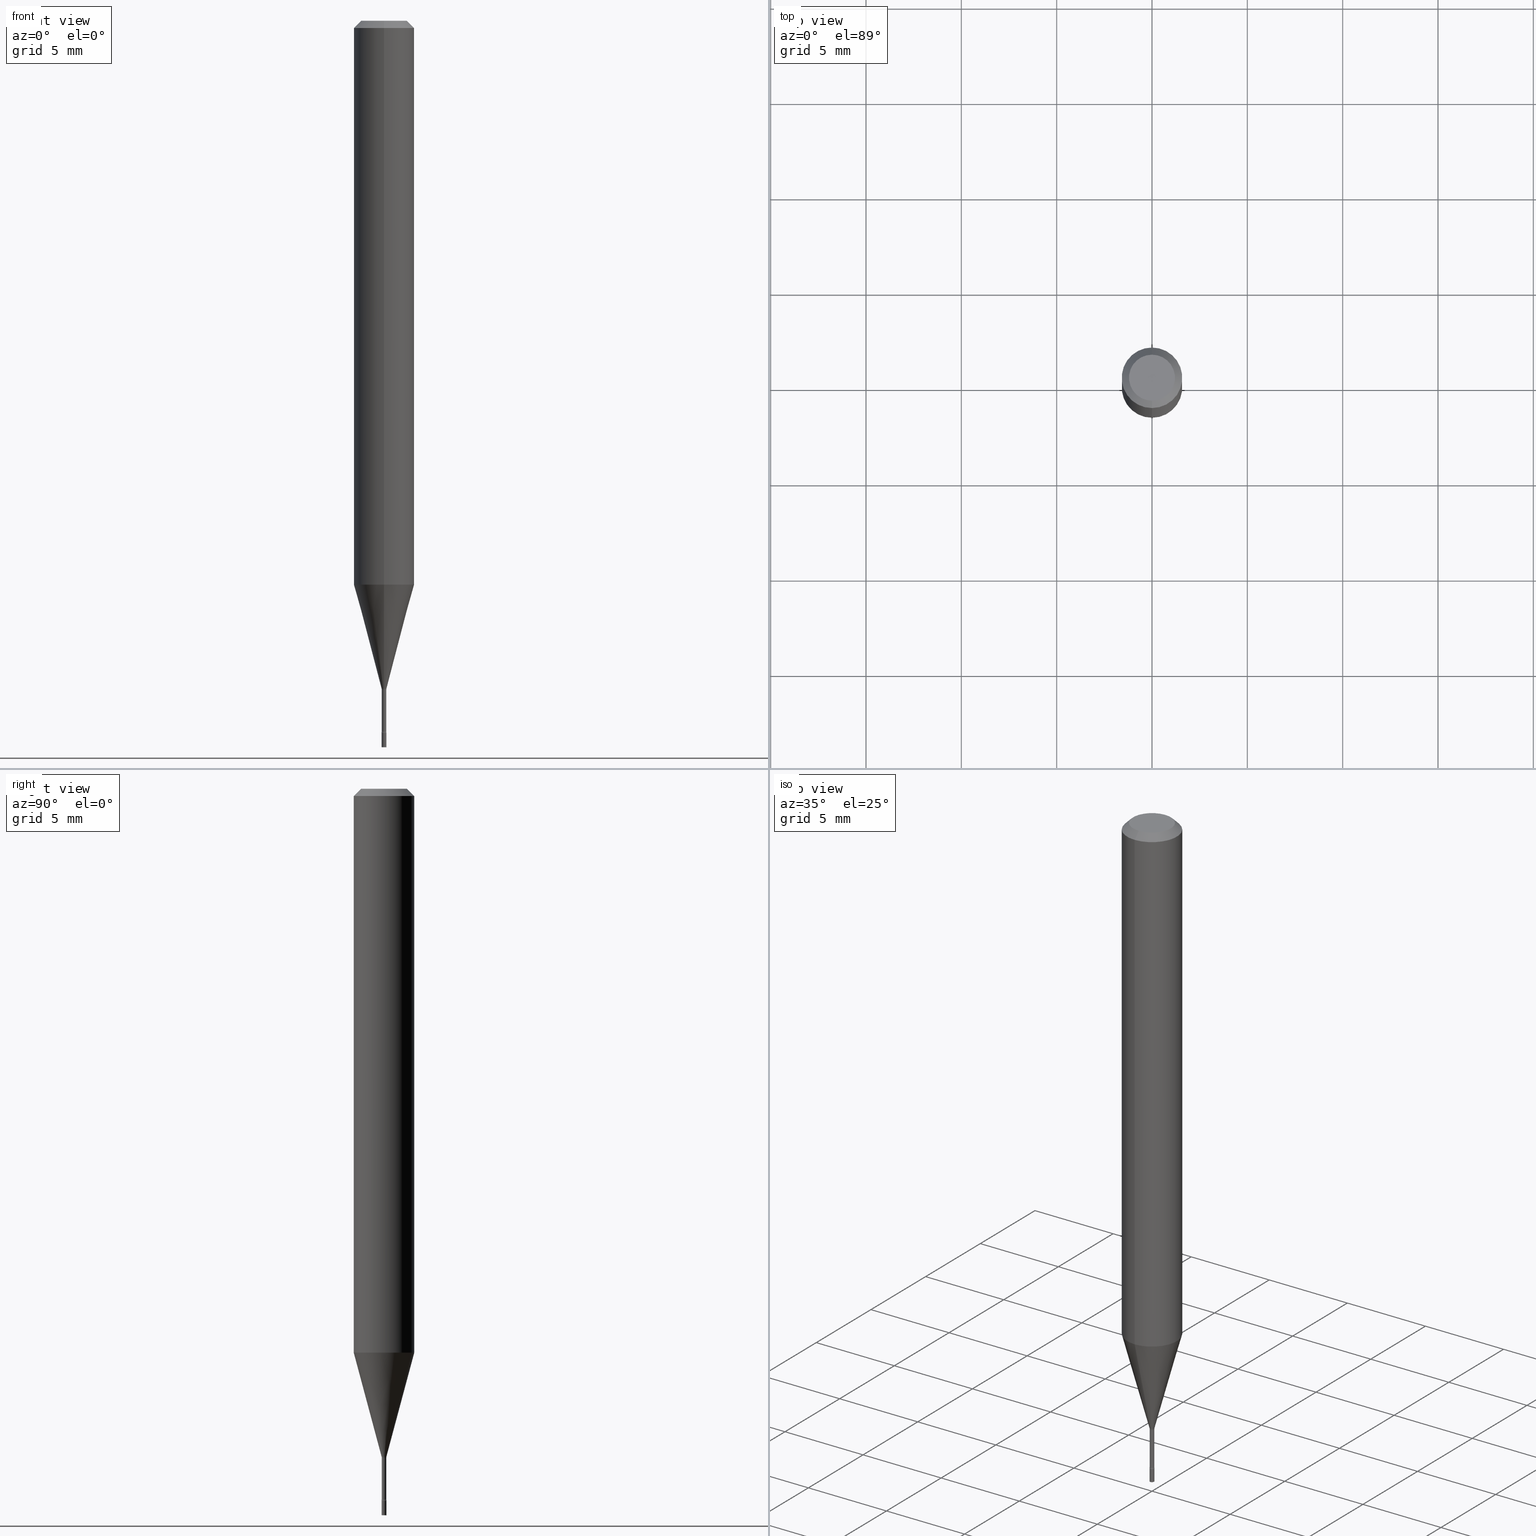
[diagram: canonical four-view strip — front | top / right | iso, engineering-drawing reading convention]
A machine part, canonical four-view strip (front | top / right | iso — engineering-drawing reading convention). The complete STEP part file that produces these views, byte-faithful:
ISO-10303-21;
HEADER;
FILE_DESCRIPTION (( 'STEP AP203' ),
    '1' );
FILE_NAME ('03427.STEP',
    '2024-03-08T21:20:38',
    ( '' ),
    ( '' ),
    'SwSTEP 2.0',
    'SolidWorks 2023',
    '' );
FILE_SCHEMA (( 'CONFIG_CONTROL_DESIGN' ));
ENDSEC;

DATA;
#1 = COORDINATED_UNIVERSAL_TIME_OFFSET ( 5, 0, .BEHIND. ) ;
#2 = DIRECTION ( 'NONE',  ( -6.982962677686265922E-15, -1.000000000000000000, 0.000000000000000000 ) ) ;
#3 = CARTESIAN_POINT ( 'NONE',  ( -0.004999999999999997502, -5.149322651394067240E-15, -1.500000000000000222 ) ) ;
#4 = AXIS2_PLACEMENT_3D ( 'NONE', #443, #43, #2 ) ;
#5 = AXIS2_PLACEMENT_3D ( 'NONE', #410, #217, #416 ) ;
#6 = FACE_OUTER_BOUND ( 'NONE', #184, .T. ) ;
#7 = ORIENTED_EDGE ( 'NONE', *, *, #502, .F. ) ;
#8 = DIRECTION ( 'NONE',  ( -6.982962677686265133E-15, -1.000000000000000000, 3.494231541013484415E-15 ) ) ;
#9 = ORIENTED_EDGE ( 'NONE', *, *, #468, .T. ) ;
#10 = ADVANCED_BREP_SHAPE_REPRESENTATION ( '03427', ( #12, #365, #182 ), #183 ) ;
#11 = LINE ( 'NONE', #91, #14 ) ;
#12 = MANIFOLD_SOLID_BREP ( 'Body-Move/Copy2[1]', #473 ) ;
#13 = ORIENTED_EDGE ( 'NONE', *, *, #186, .T. ) ;
#14 = VECTOR ( 'NONE', #51, 39.37007874015748143 ) ;
#15 = CYLINDRICAL_SURFACE ( 'NONE', #233, 0.004700000000000010593 ) ;
#16 = ORIENTED_EDGE ( 'NONE', *, *, #38, .T. ) ;
#17 = EDGE_CURVE ( 'NONE', #491, #140, #300, .T. ) ;
#18 = DIRECTION ( 'NONE',  ( -1.807323732225325801E-15, -0.2588190451025175753, 0.9659258262890690894 ) ) ;
#19 = ORIENTED_EDGE ( 'NONE', *, *, #502, .T. ) ;
#20 = CARTESIAN_POINT ( 'NONE',  ( 4.440892098500912124E-16, 0.06249999999999995143, -0.01500000000000024751 ) ) ;
#21 = CARTESIAN_POINT ( 'NONE',  ( 1.399769189447734763E-16, 0.01969999999999517276, -1.381974787463811305 ) ) ;
#22 = CIRCLE ( 'NONE', #65, 0.06250000000000000000 ) ;
#23 = VECTOR ( 'NONE', #179, 39.37007874015748143 ) ;
#24 = CARTESIAN_POINT ( 'NONE',  ( 2.844992710246418871E-29, -4.068289977148127894E-15, -1.164287463322519312 ) ) ;
#25 = ORIENTED_EDGE ( 'NONE', *, *, #85, .T. ) ;
#26 = DIRECTION ( 'NONE',  ( 2.438088387897960049E-29, -3.491481338843145188E-15, -1.000000000000000000 ) ) ;
#27 = EDGE_CURVE ( 'NONE', #461, #59, #22, .T. ) ;
#28 = DIRECTION ( 'NONE',  ( -6.982962677686265922E-15, -1.000000000000000000, 3.483106191921935554E-15 ) ) ;
#29 = VECTOR ( 'NONE', #250, 39.37007874015748143 ) ;
#30 = CIRCLE ( 'NONE', #165, 0.04749999999999999362 ) ;
#31 = APPROVAL_DATE_TIME ( #204, #94 ) ;
#32 = CARTESIAN_POINT ( 'NONE',  ( 3.665322525410976875E-31, -5.241347311520237321E-17, -0.01500000000000003067 ) ) ;
#33 = PERSON_AND_ORGANIZATION_ROLE ( 'design_owner' ) ;
#34 = CARTESIAN_POINT ( 'NONE',  ( -0.004999999999999997502, 3.552713678800499154E-17, -2.459467545127451822E-31 ) ) ;
#35 = EDGE_CURVE ( 'NONE', #59, #461, #112, .T. ) ;
#36 = APPROVAL_STATUS ( 'not_yet_approved' ) ;
#37 = DIRECTION ( 'NONE',  ( -6.982962677686266711E-15, -1.000000000000000000, 3.494231541013484415E-15 ) ) ;
#38 = EDGE_CURVE ( 'NONE', #223, #377, #76, .T. ) ;
#39 = AXIS2_PLACEMENT_3D ( 'NONE', #269, #264, #60 ) ;
#40 = DIRECTION ( 'NONE',  ( -2.443548350273979842E-29, 3.494231541013484415E-15, 1.000000000000000000 ) ) ;
#41 = DATE_TIME_ROLE ( 'creation_date' ) ;
#42 = EDGE_CURVE ( 'NONE', #189, #340, #54, .T. ) ;
#43 = DIRECTION ( 'NONE',  ( -2.443548350273979842E-29, 3.494231541013484415E-15, 1.000000000000000000 ) ) ;
#44 = DIRECTION ( 'NONE',  ( -2.443548350273979842E-29, 3.494231541013484415E-15, 1.000000000000000000 ) ) ;
#45 = CARTESIAN_POINT ( 'NONE',  ( 2.405581959609744668E-16, 0.005211112605659107451, -1.378092501787273605 ) ) ;
#46 = AXIS2_PLACEMENT_3D ( 'NONE', #276, #203, #392 ) ;
#47 = AXIS2_PLACEMENT_3D ( 'NONE', #337, #298, #257 ) ;
#48 = ORIENTED_EDGE ( 'NONE', *, *, #252, .T. ) ;
#49 = APPROVAL_PERSON_ORGANIZATION ( #244, #395, #130 ) ;
#50 = CARTESIAN_POINT ( 'NONE',  ( 3.665322525410976875E-31, -5.241347311520237321E-17, -0.01500000000000003067 ) ) ;
#51 = DIRECTION ( 'NONE',  ( -2.443548350273979842E-29, 3.494231541013484415E-15, 1.000000000000000000 ) ) ;
#52 = ORIENTED_EDGE ( 'NONE', *, *, #400, .F. ) ;
#53 = DIRECTION ( 'NONE',  ( -2.443548350273979562E-29, 3.494231541013484415E-15, 1.000000000000000000 ) ) ;
#54 = CIRCLE ( 'NONE', #215, 0.01500000000000000638 ) ;
#55 = ORIENTED_EDGE ( 'NONE', *, *, #275, .F. ) ;
#56 = VECTOR ( 'NONE', #89, 39.37007874015748854 ) ;
#57 = PRODUCT_DEFINITION_FORMATION_WITH_SPECIFIED_SOURCE ( 'ANY', '', #373, .NOT_KNOWN. ) ;
#58 = DIRECTION ( 'NONE',  ( -2.443548350273979842E-29, 3.494231541013484415E-15, 1.000000000000000000 ) ) ;
#59 = VERTEX_POINT ( 'NONE', #160 ) ;
#60 = DIRECTION ( 'NONE',  ( 1.000000000000000000, -6.982962677686336130E-15, 0.000000000000000000 ) ) ;
#61 = ORIENTED_EDGE ( 'NONE', *, *, #186, .F. ) ;
#62 = PERSON ( 'UNSPECIFIED', 'UNSPECIFIED', 'UNSPECIFIED', ('UNSPECIFIED'), ('UNSPECIFIED'), ('UNSPECIFIED') ) ;
#63 = FACE_OUTER_BOUND ( 'NONE', #258, .T. ) ;
#64 = ORIENTED_EDGE ( 'NONE', *, *, #196, .T. ) ;
#65 = AXIS2_PLACEMENT_3D ( 'NONE', #232, #197, #350 ) ;
#66 = TOROIDAL_SURFACE ( 'NONE', #397, 0.01970000000000000223, 0.01500000000000001332 ) ;
#67 = LOCAL_TIME ( 16, 20, 38.00000000000000000, #1 ) ;
#68 = DIRECTION ( 'NONE',  ( -2.443548350273979842E-29, 3.494231541013484415E-15, 1.000000000000000000 ) ) ;
#69 = DIRECTION ( 'NONE',  ( -1.000000000000000000, 6.982962677686265922E-15, -4.883557194083112340E-29 ) ) ;
#70 = ADVANCED_FACE ( 'NONE', ( #313 ), #310, .T. ) ;
#71 =( CONVERSION_BASED_UNIT ( 'INCH', #387 ) LENGTH_UNIT ( ) NAMED_UNIT ( #95 ) );
#72 = EDGE_LOOP ( 'NONE', ( #348, #13, #454, #427 ) ) ;
#73 = CALENDAR_DATE ( 2024, 8, 3 ) ;
#74 = DIRECTION ( 'NONE',  ( -2.443548350273979842E-29, 3.494231541013484415E-15, 1.000000000000000000 ) ) ;
#75 = EDGE_CURVE ( 'NONE', #333, #331, #84, .T. ) ;
#76 = CIRCLE ( 'NONE', #405, 0.01500000000000001159 ) ;
#77 = AXIS2_PLACEMENT_3D ( 'NONE', #385, #154, #110 ) ;
#78 = CC_DESIGN_SECURITY_CLASSIFICATION ( #93, ( #57 ) ) ;
#79 = DIRECTION ( 'NONE',  ( -6.982962677686265133E-15, -1.000000000000000000, 3.494231541013484415E-15 ) ) ;
#80 = FACE_OUTER_BOUND ( 'NONE', #90, .T. ) ;
#81 = EDGE_CURVE ( 'NONE', #180, #106, #439, .T. ) ;
#82 = PERSON_AND_ORGANIZATION_ROLE ( 'creator' ) ;
#83 = CARTESIAN_POINT ( 'NONE',  ( 3.584558826531419241E-29, -5.126324140382401988E-15, -1.467015037688680357 ) ) ;
#84 = CIRCLE ( 'NONE', #129, 0.01500000000000001159 ) ;
#85 = EDGE_CURVE ( 'NONE', #223, #333, #448, .T. ) ;
#86 = PERSON_AND_ORGANIZATION ( #62, #240 ) ;
#87 = CARTESIAN_POINT ( 'NONE',  ( 3.594839145092150820E-29, -5.132477568099424807E-15, -1.470000000000000195 ) ) ;
#88 = FACE_OUTER_BOUND ( 'NONE', #477, .T. ) ;
#89 = DIRECTION ( 'NONE',  ( -4.851104656540963486E-15, -0.7071067811865499042, -0.7071067811865450192 ) ) ;
#90 = EDGE_LOOP ( 'NONE', ( #386, #16, #48, #256 ) ) ;
#91 = CARTESIAN_POINT ( 'NONE',  ( -3.281992458512552434E-17, -0.004700000000000010593, 1.642288824276341282E-17 ) ) ;
#92 = VERTEX_POINT ( 'NONE', #450 ) ;
#93 = SECURITY_CLASSIFICATION ( '', '', #322 ) ;
#94 = APPROVAL ( #277, 'UNSPECIFIED' ) ;
#95 = DIMENSIONAL_EXPONENTS ( 1.000000000000000000, 0.000000000000000000, 0.000000000000000000, 0.000000000000000000, 0.000000000000000000, 0.000000000000000000, 0.000000000000000000 ) ;
#96 = DIRECTION ( 'NONE',  ( -2.443548350273979842E-29, 3.494231541013484415E-15, 1.000000000000000000 ) ) ;
#97 = ORIENTED_EDGE ( 'NONE', *, *, #324, .F. ) ;
#98 = ADVANCED_FACE ( 'NONE', ( #211 ), #326, .T. ) ;
#99 = PLANE ( 'NONE',  #119 ) ;
#100 = ORIENTED_EDGE ( 'NONE', *, *, #275, .T. ) ;
#101 = DIRECTION ( 'NONE',  ( -2.443548350273979842E-29, 3.494231541013484415E-15, 1.000000000000000000 ) ) ;
#102 = APPROVAL ( #352, 'UNSPECIFIED' ) ;
#103 = CONICAL_SURFACE ( 'NONE', #173, 0.005211112605663922176, 0.2617993877991496299 ) ;
#104 = VERTEX_POINT ( 'NONE', #212 ) ;
#105 = AXIS2_PLACEMENT_3D ( 'NONE', #503, #305, #349 ) ;
#106 = VERTEX_POINT ( 'NONE', #132 ) ;
#107 = CC_DESIGN_PERSON_AND_ORGANIZATION_ASSIGNMENT ( #86, #482, ( #93 ) ) ;
#108 = FACE_OUTER_BOUND ( 'NONE', #218, .T. ) ;
#109 = ORIENTED_EDGE ( 'NONE', *, *, #133, .T. ) ;
#110 = DIRECTION ( 'NONE',  ( -6.982962677686265922E-15, -1.000000000000000000, 3.494231541013484415E-15 ) ) ;
#111 = DIRECTION ( 'NONE',  ( -6.982962677686265133E-15, -1.000000000000000000, 0.000000000000000000 ) ) ;
#112 = CIRCLE ( 'NONE', #200, 0.06250000000000000000 ) ;
#113 = AXIS2_PLACEMENT_3D ( 'NONE', #195, #235, #193 ) ;
#114 = CARTESIAN_POINT ( 'NONE',  ( 7.033332737889117221E-46, -1.005754319877456614E-31, -2.878327632477791057E-17 ) ) ;
#115 = ORIENTED_EDGE ( 'NONE', *, *, #354, .F. ) ;
#116 = ORIENTED_EDGE ( 'NONE', *, *, #406, .F. ) ;
#117 = PERSON_AND_ORGANIZATION ( #62, #240 ) ;
#118 = LINE ( 'NONE', #128, #507 ) ;
#119 = AXIS2_PLACEMENT_3D ( 'NONE', #175, #137, #259 ) ;
#120 = DIRECTION ( 'NONE',  ( 7.105427357601000281E-15, 1.000000000000000000, 0.000000000000000000 ) ) ;
#121 = PRODUCT_DEFINITION ( 'UNKNOWN', '', #57, #126 ) ;
#122 = DATE_AND_TIME ( #355, #486 ) ;
#123 = CARTESIAN_POINT ( 'NONE',  ( 3.668203209277704895E-29, -5.237222008264718177E-15, -1.500000000000000222 ) ) ;
#124 = ADVANCED_FACE ( 'NONE', ( #171 ), #157, .F. ) ;
#125 = DATE_AND_TIME ( #73, #351 ) ;
#126 = DESIGN_CONTEXT ( 'detailed design', #127, 'design' ) ;
#127 = APPLICATION_CONTEXT ( 'configuration controlled 3d designs of mechanical parts and assemblies' ) ;
#128 = CARTESIAN_POINT ( 'NONE',  ( 3.339550858072477784E-17, 0.004700000000000010593, -1.642288824276341282E-17 ) ) ;
#129 = AXIS2_PLACEMENT_3D ( 'NONE', #437, #69, #506 ) ;
#130 = APPROVAL_ROLE ( '' ) ;
#131 = CC_DESIGN_APPROVAL ( #94, ( #121 ) ) ;
#132 = CARTESIAN_POINT ( 'NONE',  ( 3.552713678804093402E-17, 0.004999999999994865323, -1.470000000000000195 ) ) ;
#133 = EDGE_CURVE ( 'NONE', #177, #238, #164, .T. ) ;
#134 = LINE ( 'NONE', #451, #56 ) ;
#135 = FACE_OUTER_BOUND ( 'NONE', #150, .T. ) ;
#136 = ORIENTED_EDGE ( 'NONE', *, *, #133, .F. ) ;
#137 = DIRECTION ( 'NONE',  ( 2.443548350273979562E-29, -3.494231541013484415E-15, -1.000000000000000000 ) ) ;
#138 = ADVANCED_FACE ( 'NONE', ( #323 ), #367, .T. ) ;
#139 = VECTOR ( 'NONE', #312, 39.37007874015748143 ) ;
#140 = VERTEX_POINT ( 'NONE', #245 ) ;
#141 = CARTESIAN_POINT ( 'NONE',  ( -3.638900483453792750E-17, -0.005211112605668736901, -1.378092501787273605 ) ) ;
#142 = EDGE_CURVE ( 'NONE', #180, #377, #118, .T. ) ;
#143 = CYLINDRICAL_SURFACE ( 'NONE', #47, 0.004999999999999997502 ) ;
#144 = ORIENTED_EDGE ( 'NONE', *, *, #155, .T. ) ;
#145 = DIRECTION ( 'NONE',  ( -2.443548350273979842E-29, 3.494231541013484415E-15, 1.000000000000000000 ) ) ;
#146 = CC_DESIGN_PERSON_AND_ORGANIZATION_ASSIGNMENT ( #237, #360, ( #57 ) ) ;
#147 = EDGE_LOOP ( 'NONE', ( #463, #466, #411, #501 ) ) ;
#148 = AXIS2_PLACEMENT_3D ( 'NONE', #315, #442, #37 ) ;
#149 = CARTESIAN_POINT ( 'NONE',  ( 4.440892098500909166E-16, 0.06249999999999592687, -1.164287463322519756 ) ) ;
#150 = EDGE_LOOP ( 'NONE', ( #394, #432 ) ) ;
#151 = DIRECTION ( 'NONE',  ( -2.443548350273979842E-29, 3.494231541013484415E-15, 1.000000000000000000 ) ) ;
#152 = EDGE_CURVE ( 'NONE', #344, #104, #485, .T. ) ;
#153 = ORIENTED_EDGE ( 'NONE', *, *, #178, .T. ) ;
#154 = DIRECTION ( 'NONE',  ( -2.443548350273979842E-29, 3.494231541013484415E-15, 1.000000000000000000 ) ) ;
#155 = EDGE_CURVE ( 'NONE', #238, #344, #399, .T. ) ;
#156 = ORIENTED_EDGE ( 'NONE', *, *, #214, .T. ) ;
#157 = TOROIDAL_SURFACE ( 'NONE', #341, 0.01970000000000001958, 0.01500000000000000638 ) ;
#158 = LOCAL_TIME ( 16, 20, 38.00000000000000000, #444 ) ;
#159 =( NAMED_UNIT ( * ) SI_UNIT ( $, .STERADIAN. ) SOLID_ANGLE_UNIT ( ) );
#160 = CARTESIAN_POINT ( 'NONE',  ( -4.364351673553632704E-16, -0.06250000000000409395, -1.164287463322519089 ) ) ;
#161 = DIRECTION ( 'NONE',  ( -6.982962677686266711E-15, -1.000000000000000000, 0.000000000000000000 ) ) ;
#162 = CALENDAR_DATE ( 2024, 8, 3 ) ;
#163 = DIRECTION ( 'NONE',  ( 6.982962677686265922E-15, 1.000000000000000000, -3.483106191921935554E-15 ) ) ;
#164 = CIRCLE ( 'NONE', #293, 0.004999999999999997502 ) ;
#165 = AXIS2_PLACEMENT_3D ( 'NONE', #481, #282, #370 ) ;
#166 = MECHANICAL_CONTEXT ( 'NONE', #420, 'mechanical' ) ;
#167 = DIRECTION ( 'NONE',  ( -2.438088387897960049E-29, 3.491481338843145188E-15, 1.000000000000000000 ) ) ;
#168 = DIRECTION ( 'NONE',  ( 0.000000000000000000, 0.000000000000000000, 1.000000000000000000 ) ) ;
#169 = DIRECTION ( 'NONE',  ( 1.000000000000000000, -6.982962677686336130E-15, 0.000000000000000000 ) ) ;
#170 = CARTESIAN_POINT ( 'NONE',  ( 0.000000000000000000, 0.000000000000000000, 0.000000000000000000 ) ) ;
#171 = FACE_OUTER_BOUND ( 'NONE', #221, .T. ) ;
#172 = ADVANCED_FACE ( 'NONE', ( #88 ), #103, .T. ) ;
#173 = AXIS2_PLACEMENT_3D ( 'NONE', #480, #249, #408 ) ;
#174 = CONICAL_SURFACE ( 'NONE', #113, 0.005211112605663922176, 0.2617993877991496299 ) ;
#175 = CARTESIAN_POINT ( 'NONE',  ( 3.316907271900976096E-16, 0.04749999999999999362, -1.803676363605294628E-16 ) ) ;
#176 = LINE ( 'NONE', #332, #271 ) ;
#177 = VERTEX_POINT ( 'NONE', #205 ) ;
#178 = EDGE_CURVE ( 'NONE', #461, #491, #404, .T. ) ;
#179 = DIRECTION ( 'NONE',  ( 1.839019923739595977E-15, 0.2588190451025243477, 0.9659258262890673130 ) ) ;
#180 = VERTEX_POINT ( 'NONE', #281 ) ;
#181 = CARTESIAN_POINT ( 'NONE',  ( -3.491481338839543545E-17, -0.005000000000005139222, -1.470000000000000195 ) ) ;
#182 = AXIS2_PLACEMENT_3D ( 'NONE', #170, #168, #515 ) ;
#183 =( GEOMETRIC_REPRESENTATION_CONTEXT ( 3 ) GLOBAL_UNCERTAINTY_ASSIGNED_CONTEXT ( ( #266 ) ) GLOBAL_UNIT_ASSIGNED_CONTEXT ( ( #71, #393, #159 ) ) REPRESENTATION_CONTEXT ( 'NONE', 'WORKASPACE' ) );
#184 = EDGE_LOOP ( 'NONE', ( #19, #156 ) ) ;
#185 = DIRECTION ( 'NONE',  ( 4.937700262164547253E-15, 0.7071067811865450192, -0.7071067811865499042 ) ) ;
#186 = EDGE_CURVE ( 'NONE', #180, #189, #464, .T. ) ;
#187 = ORIENTED_EDGE ( 'NONE', *, *, #35, .F. ) ;
#188 = DIRECTION ( 'NONE',  ( -6.982962677686265922E-15, -1.000000000000000000, 3.494231541013484021E-15 ) ) ;
#189 = VERTEX_POINT ( 'NONE', #409 ) ;
#190 =( LENGTH_UNIT ( ) NAMED_UNIT ( * ) SI_UNIT ( $, .METRE. ) );
#191 = ORIENTED_EDGE ( 'NONE', *, *, #152, .F. ) ;
#192 = CIRCLE ( 'NONE', #246, 0.004700000000000007123 ) ;
#193 = DIRECTION ( 'NONE',  ( -6.982962677686266711E-15, -1.000000000000000000, 0.000000000000000000 ) ) ;
#194 = DIRECTION ( 'NONE',  ( 1.000000000000000000, -7.105427357601001070E-15, 4.926349188804931213E-29 ) ) ;
#195 = CARTESIAN_POINT ( 'NONE',  ( 3.367435659267233569E-29, -4.815374286179273696E-15, -1.378092501787273605 ) ) ;
#196 = EDGE_CURVE ( 'NONE', #333, #223, #508, .T. ) ;
#197 = DIRECTION ( 'NONE',  ( -2.443548350273979842E-29, 3.494231541013484415E-15, 1.000000000000000000 ) ) ;
#198 = DIRECTION ( 'NONE',  ( -2.443548350273979842E-29, 3.494231541013484415E-15, 1.000000000000000000 ) ) ;
#199 = ADVANCED_FACE ( 'NONE', ( #80 ), #285, .F. ) ;
#200 = AXIS2_PLACEMENT_3D ( 'NONE', #24, #198, #398 ) ;
#201 = AXIS2_PLACEMENT_3D ( 'NONE', #50, #490, #251 ) ;
#202 = SHAPE_DEFINITION_REPRESENTATION ( #243, #10 ) ;
#203 = DIRECTION ( 'NONE',  ( 2.443548350273979842E-29, -3.494231541013484415E-15, -1.000000000000000000 ) ) ;
#204 = DATE_AND_TIME ( #162, #158 ) ;
#205 = CARTESIAN_POINT ( 'NONE',  ( 0.004999999999999997502, -5.272136821653149826E-15, -1.500000000000000222 ) ) ;
#206 = PERSON_AND_ORGANIZATION ( #62, #240 ) ;
#207 = DIRECTION ( 'NONE',  ( 1.000000000000000000, -6.982962677686336130E-15, 0.000000000000000000 ) ) ;
#208 = CIRCLE ( 'NONE', #302, 0.004999999999999997502 ) ;
#209 = ADVANCED_FACE ( 'NONE', ( #401 ), #358, .T. ) ;
#210 = APPLICATION_PROTOCOL_DEFINITION ( 'international standard', 'config_control_design', 1994, #127 ) ;
#211 = FACE_OUTER_BOUND ( 'NONE', #425, .T. ) ;
#212 = CARTESIAN_POINT ( 'NONE',  ( 0.004999999999999997502, -5.167392381487856456E-15, -1.470000000000000195 ) ) ;
#213 = CARTESIAN_POINT ( 'NONE',  ( 3.367435659267233569E-29, -4.815374286179273696E-15, -1.378092501787273605 ) ) ;
#214 = EDGE_CURVE ( 'NONE', #92, #308, #30, .T. ) ;
#215 = AXIS2_PLACEMENT_3D ( 'NONE', #504, #510, #111 ) ;
#216 = CIRCLE ( 'NONE', #105, 0.005000000000000001839 ) ;
#217 = DIRECTION ( 'NONE',  ( -2.443548350273979842E-29, 3.494231541013484415E-15, 1.000000000000000000 ) ) ;
#218 = EDGE_LOOP ( 'NONE', ( #234, #228, #389, #306 ) ) ;
#219 = CC_DESIGN_PERSON_AND_ORGANIZATION_ASSIGNMENT ( #438, #33, ( #373 ) ) ;
#220 = DIRECTION ( 'NONE',  ( -2.443548350273979842E-29, 3.494231541013484415E-15, 1.000000000000000000 ) ) ;
#221 = EDGE_LOOP ( 'NONE', ( #498, #417, #489, #435 ) ) ;
#222 = CARTESIAN_POINT ( 'NONE',  ( 3.584722175171294626E-29, -5.126090215832872637E-15, -1.467015037688680357 ) ) ;
#223 = VERTEX_POINT ( 'NONE', #45 ) ;
#224 = AXIS2_PLACEMENT_3D ( 'NONE', #447, #241, #318 ) ;
#225 = CARTESIAN_POINT ( 'NONE',  ( 3.584558826531419241E-29, -5.126324140382401988E-15, -1.467015037688680357 ) ) ;
#226 = AXIS2_PLACEMENT_3D ( 'NONE', #222, #96, #288 ) ;
#227 = ORIENTED_EDGE ( 'NONE', *, *, #402, .T. ) ;
#228 = ORIENTED_EDGE ( 'NONE', *, *, #196, .F. ) ;
#229 = CARTESIAN_POINT ( 'NONE',  ( 0.000000000000000000, 0.000000000000000000, 0.000000000000000000 ) ) ;
#230 = ORIENTED_EDGE ( 'NONE', *, *, #27, .T. ) ;
#231 = DIRECTION ( 'NONE',  ( -6.982962677686266711E-15, -1.000000000000000000, 3.494231541013484415E-15 ) ) ;
#232 = CARTESIAN_POINT ( 'NONE',  ( 2.844992710246418871E-29, -4.068289977148127894E-15, -1.164287463322519312 ) ) ;
#233 = AXIS2_PLACEMENT_3D ( 'NONE', #495, #58, #366 ) ;
#234 = ORIENTED_EDGE ( 'NONE', *, *, #38, .F. ) ;
#235 = DIRECTION ( 'NONE',  ( -2.443548350273979842E-29, 3.494231541013484415E-15, 1.000000000000000000 ) ) ;
#236 = ORIENTED_EDGE ( 'NONE', *, *, #519, .T. ) ;
#237 = PERSON_AND_ORGANIZATION ( #62, #240 ) ;
#238 = VERTEX_POINT ( 'NONE', #3 ) ;
#239 = VECTOR ( 'NONE', #284, 39.37007874015748143 ) ;
#240 = ORGANIZATION ( 'UNSPECIFIED', 'UNSPECIFIED', '' ) ;
#241 = DIRECTION ( 'NONE',  ( -2.443548350273979842E-29, 3.494231541013484415E-15, 1.000000000000000000 ) ) ;
#242 = PERSON_AND_ORGANIZATION_ROLE ( 'design_supplier' ) ;
#243 = PRODUCT_DEFINITION_SHAPE ( 'NONE', 'NONE',  #121 ) ;
#244 = PERSON_AND_ORGANIZATION ( #62, #240 ) ;
#245 = CARTESIAN_POINT ( 'NONE',  ( -4.364351673553912750E-16, -0.06250000000000005551, -0.01499999999999981209 ) ) ;
#246 = AXIS2_PLACEMENT_3D ( 'NONE', #376, #101, #460 ) ;
#247 = EDGE_CURVE ( 'NONE', #189, #331, #11, .T. ) ;
#248 = APPROVAL_DATE_TIME ( #446, #102 ) ;
#249 = DIRECTION ( 'NONE',  ( -2.443548350273979842E-29, 3.494231541013484415E-15, 1.000000000000000000 ) ) ;
#250 = DIRECTION ( 'NONE',  ( -2.443548350273979842E-29, 3.494231541013484415E-15, 1.000000000000000000 ) ) ;
#251 = DIRECTION ( 'NONE',  ( -6.982962677686265922E-15, -1.000000000000000000, 3.483106191921935554E-15 ) ) ;
#252 = EDGE_CURVE ( 'NONE', #377, #331, #343, .T. ) ;
#253 = EDGE_LOOP ( 'NONE', ( #61, #374, #9, #295 ) ) ;
#254 = VECTOR ( 'NONE', #18, 39.37007874015748854 ) ;
#255 = CARTESIAN_POINT ( 'NONE',  ( -3.281992458509173891E-17, -0.004700000000004836594, -1.381974787463811305 ) ) ;
#256 = ORIENTED_EDGE ( 'NONE', *, *, #75, .F. ) ;
#257 = DIRECTION ( 'NONE',  ( 1.000000000000000000, -6.982962677686266711E-15, 4.876176775795936914E-29 ) ) ;
#258 = EDGE_LOOP ( 'NONE', ( #109, #144, #116, #55 ) ) ;
#259 = DIRECTION ( 'NONE',  ( 6.982962677686265922E-15, 1.000000000000000000, -3.494231541013484415E-15 ) ) ;
#260 = ORIENTED_EDGE ( 'NONE', *, *, #35, .T. ) ;
#261 = PLANE ( 'NONE',  #499 ) ;
#262 = CIRCLE ( 'NONE', #201, 0.06250000000000000000 ) ;
#263 = EDGE_LOOP ( 'NONE', ( #260, #153, #52, #353 ) ) ;
#264 = DIRECTION ( 'NONE',  ( -2.445468806185136597E-29, 3.491481338843145583E-15, 1.000000000000000000 ) ) ;
#265 = ORIENTED_EDGE ( 'NONE', *, *, #354, .T. ) ;
#266 = UNCERTAINTY_MEASURE_WITH_UNIT (LENGTH_MEASURE( 1.000000000000000082E-05 ), #71, 'distance_accuracy_value', 'NONE');
#267 = EDGE_CURVE ( 'NONE', #238, #177, #208, .T. ) ;
#268 = EDGE_LOOP ( 'NONE', ( #115, #25, #227, #336 ) ) ;
#269 = CARTESIAN_POINT ( 'NONE',  ( 3.594839145092150820E-29, -5.132477568099424807E-15, -1.470000000000000195 ) ) ;
#270 = ORIENTED_EDGE ( 'NONE', *, *, #267, .T. ) ;
#271 = VECTOR ( 'NONE', #185, 39.37007874015748854 ) ;
#272 = ADVANCED_FACE ( 'NONE', ( #6 ), #99, .F. ) ;
#273 = FACE_OUTER_BOUND ( 'NONE', #268, .T. ) ;
#274 = ORIENTED_EDGE ( 'NONE', *, *, #406, .T. ) ;
#275 = EDGE_CURVE ( 'NONE', #177, #104, #335, .T. ) ;
#276 = CARTESIAN_POINT ( 'NONE',  ( 3.665322525410976875E-31, -5.241347311520237321E-17, -0.01500000000000003067 ) ) ;
#277 = APPROVAL_STATUS ( 'not_yet_approved' ) ;
#278 = DIRECTION ( 'NONE',  ( -2.445468806185136597E-29, 3.491481338843145583E-15, 1.000000000000000000 ) ) ;
#279 = AXIS2_PLACEMENT_3D ( 'NONE', #430, #339, #345 ) ;
#280 = CC_DESIGN_APPROVAL ( #102, ( #93 ) ) ;
#281 = CARTESIAN_POINT ( 'NONE',  ( 3.446132268440079635E-17, 0.004699999999994887087, -1.467015037688680357 ) ) ;
#282 = DIRECTION ( 'NONE',  ( -2.443548350273979842E-29, 3.494231541013484415E-15, 1.000000000000000000 ) ) ;
#283 = CALENDAR_DATE ( 2024, 8, 3 ) ;
#284 = DIRECTION ( 'NONE',  ( -2.445468806185136877E-29, 3.491481338843145188E-15, 1.000000000000000000 ) ) ;
#285 = TOROIDAL_SURFACE ( 'NONE', #148, 0.01970000000000000223, 0.01500000000000001332 ) ;
#286 = COORDINATED_UNIVERSAL_TIME_OFFSET ( 5, 0, .BEHIND. ) ;
#287 = CARTESIAN_POINT ( 'NONE',  ( 3.665322525410976875E-31, -5.241347311520237321E-17, -0.01500000000000003067 ) ) ;
#288 = DIRECTION ( 'NONE',  ( -6.982962677686265922E-15, -1.000000000000000000, 0.000000000000000000 ) ) ;
#289 = EDGE_LOOP ( 'NONE', ( #496, #7, #472, #476 ) ) ;
#290 = CARTESIAN_POINT ( 'NONE',  ( 3.840629472727447874E-16, 0.04749999999999999362, -1.947592745229183872E-16 ) ) ;
#291 = ORIENTED_EDGE ( 'NONE', *, *, #155, .F. ) ;
#292 = CC_DESIGN_DATE_AND_TIME_ASSIGNMENT ( #125, #357, ( #93 ) ) ;
#293 = AXIS2_PLACEMENT_3D ( 'NONE', #123, #520, #169 ) ;
#294 = CARTESIAN_POINT ( 'NONE',  ( -0.004999999999999997502, -5.149322651394067240E-15, -1.470000000000000195 ) ) ;
#295 = ORIENTED_EDGE ( 'NONE', *, *, #42, .F. ) ;
#296 = CARTESIAN_POINT ( 'NONE',  ( 3.702718207185754248E-17, 0.005211112605659107451, -1.378092501787273605 ) ) ;
#297 = CC_DESIGN_DATE_AND_TIME_ASSIGNMENT ( #122, #41, ( #121 ) ) ;
#298 = DIRECTION ( 'NONE',  ( -2.445468806185136597E-29, 3.491481338843145583E-15, 1.000000000000000000 ) ) ;
#299 = ORIENTED_EDGE ( 'NONE', *, *, #402, .F. ) ;
#300 = CIRCLE ( 'NONE', #516, 0.06250000000000000000 ) ;
#301 = LINE ( 'NONE', #342, #139 ) ;
#302 = AXIS2_PLACEMENT_3D ( 'NONE', #462, #330, #418 ) ;
#303 = ORIENTED_EDGE ( 'NONE', *, *, #304, .T. ) ;
#304 = EDGE_CURVE ( 'NONE', #189, #180, #492, .T. ) ;
#305 = DIRECTION ( 'NONE',  ( -2.443548350273979842E-29, 3.494231541013484415E-15, 1.000000000000000000 ) ) ;
#306 = ORIENTED_EDGE ( 'NONE', *, *, #324, .T. ) ;
#307 = DIRECTION ( 'NONE',  ( -6.982962677686266711E-15, -1.000000000000000000, 0.000000000000000000 ) ) ;
#308 = VERTEX_POINT ( 'NONE', #290 ) ;
#309 = DIRECTION ( 'NONE',  ( -2.443548350273979842E-29, 3.494231541013484415E-15, 1.000000000000000000 ) ) ;
#310 = CONICAL_SURFACE ( 'NONE', #46, 0.06250000000000000000, 0.7853981633974482790 ) ;
#311 = EDGE_LOOP ( 'NONE', ( #274, #494 ) ) ;
#312 = DIRECTION ( 'NONE',  ( -2.443548350273979842E-29, 3.494231541013484415E-15, 1.000000000000000000 ) ) ;
#313 = FACE_OUTER_BOUND ( 'NONE', #147, .T. ) ;
#314 = COORDINATED_UNIVERSAL_TIME_OFFSET ( 5, 0, .BEHIND. ) ;
#315 = CARTESIAN_POINT ( 'NONE',  ( 3.376595547336323602E-29, -4.829407693671720088E-15, -1.381974787463811305 ) ) ;
#316 = ADVANCED_FACE ( 'NONE', ( #493 ), #143, .T. ) ;
#317 = PERSON_AND_ORGANIZATION ( #62, #240 ) ;
#318 = DIRECTION ( 'NONE',  ( -6.982962677686265922E-15, -1.000000000000000000, 3.494231541013484415E-15 ) ) ;
#319 = CIRCLE ( 'NONE', #39, 0.004999999999999997502 ) ;
#320 = EDGE_CURVE ( 'NONE', #308, #491, #176, .T. ) ;
#321 = DIRECTION ( 'NONE',  ( 1.000000000000000000, -6.982962677686265922E-15, 4.876176775795935793E-29 ) ) ;
#322 = SECURITY_CLASSIFICATION_LEVEL ( 'unclassified' ) ;
#323 = FACE_OUTER_BOUND ( 'NONE', #289, .T. ) ;
#324 = EDGE_CURVE ( 'NONE', #331, #377, #192, .T. ) ;
#325 = APPLICATION_PROTOCOL_DEFINITION ( 'international standard', 'config_control_design', 1994, #420 ) ;
#326 = CYLINDRICAL_SURFACE ( 'NONE', #224, 0.06250000000000000000 ) ;
#327 = AXIS2_PLACEMENT_3D ( 'NONE', #87, #278, #207 ) ;
#328 = TOROIDAL_SURFACE ( 'NONE', #456, 0.01970000000000001958, 0.01500000000000000638 ) ;
#329 = LINE ( 'NONE', #296, #23 ) ;
#330 = DIRECTION ( 'NONE',  ( -2.445468806185136597E-29, 3.491481338843145583E-15, 1.000000000000000000 ) ) ;
#331 = VERTEX_POINT ( 'NONE', #255 ) ;
#332 = CARTESIAN_POINT ( 'NONE',  ( 4.364351673553919652E-16, 0.06249999999999995143, -0.01500000000000024751 ) ) ;
#333 = VERTEX_POINT ( 'NONE', #141 ) ;
#334 = CIRCLE ( 'NONE', #359, 0.04749999999999999362 ) ;
#335 = LINE ( 'NONE', #372, #422 ) ;
#336 = ORIENTED_EDGE ( 'NONE', *, *, #27, .F. ) ;
#337 = CARTESIAN_POINT ( 'NONE',  ( 0.000000000000000000, 0.000000000000000000, 0.000000000000000000 ) ) ;
#338 = ORIENTED_EDGE ( 'NONE', *, *, #142, .T. ) ;
#339 = DIRECTION ( 'NONE',  ( -2.445468806185136597E-29, 3.491481338843145583E-15, 1.000000000000000000 ) ) ;
#340 = VERTEX_POINT ( 'NONE', #181 ) ;
#341 = AXIS2_PLACEMENT_3D ( 'NONE', #83, #44, #79 ) ;
#342 = CARTESIAN_POINT ( 'NONE',  ( -4.364351673553916201E-16, -0.06250000000000000000, 2.183894713133427759E-16 ) ) ;
#343 = CIRCLE ( 'NONE', #5, 0.004700000000000007123 ) ;
#344 = VERTEX_POINT ( 'NONE', #294 ) ;
#345 = DIRECTION ( 'NONE',  ( 1.000000000000000000, -6.982962677686266711E-15, 4.876176775795936914E-29 ) ) ;
#346 = DIRECTION ( 'NONE',  ( 7.105427357601001859E-15, 1.000000000000000000, 0.000000000000000000 ) ) ;
#347 = CARTESIAN_POINT ( 'NONE',  ( -3.638900483453792750E-17, -0.005211112605668736901, -1.378092501787273605 ) ) ;
#348 = ORIENTED_EDGE ( 'NONE', *, *, #142, .F. ) ;
#349 = DIRECTION ( 'NONE',  ( -6.982962677686266711E-15, -1.000000000000000000, 0.000000000000000000 ) ) ;
#350 = DIRECTION ( 'NONE',  ( -6.982962677686265922E-15, -1.000000000000000000, 4.370956789862821150E-15 ) ) ;
#351 = LOCAL_TIME ( 16, 20, 38.00000000000000000, #314 ) ;
#352 = APPROVAL_STATUS ( 'not_yet_approved' ) ;
#353 = ORIENTED_EDGE ( 'NONE', *, *, #519, .F. ) ;
#354 = EDGE_CURVE ( 'NONE', #223, #461, #329, .T. ) ;
#355 = CALENDAR_DATE ( 2024, 8, 3 ) ;
#356 = CARTESIAN_POINT ( 'NONE',  ( 3.367435659267233569E-29, -4.815374286179273696E-15, -1.378092501787273605 ) ) ;
#357 = DATE_TIME_ROLE ( 'classification_date' ) ;
#358 = PLANE ( 'NONE',  #441 ) ;
#359 = AXIS2_PLACEMENT_3D ( 'NONE', #114, #151, #497 ) ;
#360 = PERSON_AND_ORGANIZATION_ROLE ( 'creator' ) ;
#361 = DIRECTION ( 'NONE',  ( -6.982962677686266711E-15, -1.000000000000000000, 0.000000000000000000 ) ) ;
#362 = DATE_AND_TIME ( #403, #67 ) ;
#363 = CARTESIAN_POINT ( 'NONE',  ( 4.440892098500625669E-16, 0.06250000000000000000, -2.183894713133427759E-16 ) ) ;
#364 = ADVANCED_FACE ( 'NONE', ( #135 ), #261, .F. ) ;
#365 = MANIFOLD_SOLID_BREP ( 'Body-Move/Copy2[2]', #455 ) ;
#366 = DIRECTION ( 'NONE',  ( -6.982962677686265922E-15, -1.000000000000000000, 3.494231541013484021E-15 ) ) ;
#367 = CONICAL_SURFACE ( 'NONE', #421, 0.06250000000000000000, 0.7853981633974482790 ) ;
#368 = AXIS2_PLACEMENT_3D ( 'NONE', #213, #512, #161 ) ;
#369 = ADVANCED_FACE ( 'NONE', ( #458 ), #328, .F. ) ;
#370 = DIRECTION ( 'NONE',  ( -6.982962677686266711E-15, -1.000000000000000000, 3.494231541013484415E-15 ) ) ;
#371 = ORIENTED_EDGE ( 'NONE', *, *, #247, .F. ) ;
#372 = CARTESIAN_POINT ( 'NONE',  ( 0.004999999999999997502, -3.491481338843131630E-17, 2.438088387897967108E-31 ) ) ;
#373 = PRODUCT ( '03427', '03427', '', ( #166 ) ) ;
#374 = ORIENTED_EDGE ( 'NONE', *, *, #81, .T. ) ;
#375 = ADVANCED_FACE ( 'NONE', ( #381 ), #15, .T. ) ;
#376 = CARTESIAN_POINT ( 'NONE',  ( 3.376922212027430202E-29, -4.828939891241456391E-15, -1.381974787463811305 ) ) ;
#377 = VERTEX_POINT ( 'NONE', #487 ) ;
#378 = AXIS2_PLACEMENT_3D ( 'NONE', #356, #40, #361 ) ;
#379 = APPROVAL_PERSON_ORGANIZATION ( #117, #94, #484 ) ;
#380 = LOCAL_TIME ( 16, 20, 38.00000000000000000, #478 ) ;
#381 = FACE_OUTER_BOUND ( 'NONE', #72, .T. ) ;
#382 = FACE_OUTER_BOUND ( 'NONE', #469, .T. ) ;
#383 = EDGE_CURVE ( 'NONE', #92, #140, #134, .T. ) ;
#384 = CC_DESIGN_PERSON_AND_ORGANIZATION_ASSIGNMENT ( #206, #242, ( #57 ) ) ;
#385 = CARTESIAN_POINT ( 'NONE',  ( 0.000000000000000000, 0.000000000000000000, 0.000000000000000000 ) ) ;
#386 = ORIENTED_EDGE ( 'NONE', *, *, #85, .F. ) ;
#387 = LENGTH_MEASURE_WITH_UNIT ( LENGTH_MEASURE( 0.02539999999999999897 ), #190 );
#388 = AXIS2_PLACEMENT_3D ( 'NONE', #229, #309, #188 ) ;
#389 = ORIENTED_EDGE ( 'NONE', *, *, #75, .T. ) ;
#390 = CARTESIAN_POINT ( 'NONE',  ( 3.491481338846799833E-17, 0.004999999999994760372, -1.500000000000000222 ) ) ;
#391 = PRODUCT_RELATED_PRODUCT_CATEGORY ( 'detail', '', ( #373 ) ) ;
#392 = DIRECTION ( 'NONE',  ( 6.982962677686265922E-15, 1.000000000000000000, -3.483106191921935554E-15 ) ) ;
#393 =( NAMED_UNIT ( * ) PLANE_ANGLE_UNIT ( ) SI_UNIT ( $, .RADIAN. ) );
#394 = ORIENTED_EDGE ( 'NONE', *, *, #423, .F. ) ;
#395 = APPROVAL ( #36, 'UNSPECIFIED' ) ;
#396 = PERSON_AND_ORGANIZATION ( #62, #240 ) ;
#397 = AXIS2_PLACEMENT_3D ( 'NONE', #475, #145, #231 ) ;
#398 = DIRECTION ( 'NONE',  ( -6.982962677686265922E-15, -1.000000000000000000, 4.370956789862821150E-15 ) ) ;
#399 = LINE ( 'NONE', #34, #239 ) ;
#400 = EDGE_CURVE ( 'NONE', #140, #491, #262, .T. ) ;
#401 = FACE_OUTER_BOUND ( 'NONE', #311, .T. ) ;
#402 = EDGE_CURVE ( 'NONE', #333, #59, #467, .T. ) ;
#403 = CALENDAR_DATE ( 2024, 8, 3 ) ;
#404 = LINE ( 'NONE', #363, #29 ) ;
#405 = AXIS2_PLACEMENT_3D ( 'NONE', #21, #194, #346 ) ;
#406 = EDGE_CURVE ( 'NONE', #104, #344, #319, .T. ) ;
#407 = APPROVAL_ROLE ( '' ) ;
#408 = DIRECTION ( 'NONE',  ( -6.982962677686266711E-15, -1.000000000000000000, 0.000000000000000000 ) ) ;
#409 = CARTESIAN_POINT ( 'NONE',  ( -3.281992458508968664E-17, -0.004700000000005138436, -1.467015037688680357 ) ) ;
#410 = CARTESIAN_POINT ( 'NONE',  ( 3.376922212027430202E-29, -4.828939891241456391E-15, -1.381974787463811305 ) ) ;
#411 = ORIENTED_EDGE ( 'NONE', *, *, #400, .T. ) ;
#412 = AXIS2_PLACEMENT_3D ( 'NONE', #479, #514, #120 ) ;
#413 = APPROVAL_PERSON_ORGANIZATION ( #396, #102, #407 ) ;
#414 = ORIENTED_EDGE ( 'NONE', *, *, #178, .F. ) ;
#415 = ADVANCED_FACE ( 'NONE', ( #505 ), #426, .T. ) ;
#416 = DIRECTION ( 'NONE',  ( -6.982962677686267499E-15, -1.000000000000000000, 0.000000000000000000 ) ) ;
#417 = ORIENTED_EDGE ( 'NONE', *, *, #304, .F. ) ;
#418 = DIRECTION ( 'NONE',  ( 1.000000000000000000, -6.982962677686336130E-15, 0.000000000000000000 ) ) ;
#419 = ORIENTED_EDGE ( 'NONE', *, *, #267, .F. ) ;
#420 = APPLICATION_CONTEXT ( 'configuration controlled 3d designs of mechanical parts and assemblies' ) ;
#421 = AXIS2_PLACEMENT_3D ( 'NONE', #287, #483, #163 ) ;
#422 = VECTOR ( 'NONE', #488, 39.37007874015748143 ) ;
#423 = EDGE_CURVE ( 'NONE', #340, #106, #474, .T. ) ;
#424 = CARTESIAN_POINT ( 'NONE',  ( 3.491481338846726493E-17, 0.004999999999994865323, -1.470000000000000195 ) ) ;
#425 = EDGE_LOOP ( 'NONE', ( #414, #230, #236, #429 ) ) ;
#426 = CYLINDRICAL_SURFACE ( 'NONE', #388, 0.004700000000000010593 ) ;
#427 = ORIENTED_EDGE ( 'NONE', *, *, #252, .F. ) ;
#428 = CARTESIAN_POINT ( 'NONE',  ( 3.592016074902750348E-29, -5.136520365289822788E-15, -1.470000000000000195 ) ) ;
#429 = ORIENTED_EDGE ( 'NONE', *, *, #17, .F. ) ;
#430 = CARTESIAN_POINT ( 'NONE',  ( 0.000000000000000000, 0.000000000000000000, 0.000000000000000000 ) ) ;
#431 = AXIS2_PLACEMENT_3D ( 'NONE', #390, #26, #509 ) ;
#432 = ORIENTED_EDGE ( 'NONE', *, *, #468, .F. ) ;
#433 = ADVANCED_FACE ( 'NONE', ( #63 ), #465, .T. ) ;
#434 = CC_DESIGN_PERSON_AND_ORGANIZATION_ASSIGNMENT ( #317, #82, ( #121 ) ) ;
#435 = ORIENTED_EDGE ( 'NONE', *, *, #423, .T. ) ;
#436 = CYLINDRICAL_SURFACE ( 'NONE', #77, 0.06250000000000000000 ) ;
#437 = CARTESIAN_POINT ( 'NONE',  ( -1.375643647503856878E-16, -0.01970000000000482823, -1.381974787463811305 ) ) ;
#438 = PERSON_AND_ORGANIZATION ( #62, #240 ) ;
#439 = CIRCLE ( 'NONE', #412, 0.01500000000000000638 ) ;
#440 = ADVANCED_FACE ( 'NONE', ( #500 ), #436, .T. ) ;
#441 = AXIS2_PLACEMENT_3D ( 'NONE', #518, #167, #321 ) ;
#442 = DIRECTION ( 'NONE',  ( -2.443548350273979842E-29, 3.494231541013484415E-15, 1.000000000000000000 ) ) ;
#443 = CARTESIAN_POINT ( 'NONE',  ( 3.584722175171294626E-29, -5.126090215832872637E-15, -1.467015037688680357 ) ) ;
#444 = COORDINATED_UNIVERSAL_TIME_OFFSET ( 5, 0, .BEHIND. ) ;
#445 = DIRECTION ( 'NONE',  ( -2.443548350273979842E-29, 3.494231541013484415E-15, 1.000000000000000000 ) ) ;
#446 = DATE_AND_TIME ( #283, #380 ) ;
#447 = CARTESIAN_POINT ( 'NONE',  ( 0.000000000000000000, 0.000000000000000000, 0.000000000000000000 ) ) ;
#448 = CIRCLE ( 'NONE', #378, 0.005211112605663922176 ) ;
#449 = ADVANCED_FACE ( 'NONE', ( #108 ), #66, .F. ) ;
#450 = CARTESIAN_POINT ( 'NONE',  ( -3.773273898774340269E-16, -0.04749999999999999362, 1.371927218733625908E-16 ) ) ;
#451 = CARTESIAN_POINT ( 'NONE',  ( -4.287811248607203282E-16, -0.06250000000000005551, -0.01499999999999981209 ) ) ;
#452 = EDGE_LOOP ( 'NONE', ( #291, #270, #100, #191 ) ) ;
#453 = DIRECTION ( 'NONE',  ( -6.982962677686265922E-15, -1.000000000000000000, 3.494231541013484415E-15 ) ) ;
#454 = ORIENTED_EDGE ( 'NONE', *, *, #247, .T. ) ;
#455 = CLOSED_SHELL ( 'NONE', ( #199, #415, #369, #70, #440, #172, #511, #98, #138, #272, #364, #124, #375, #449 ) ) ;
#456 = AXIS2_PLACEMENT_3D ( 'NONE', #225, #220, #8 ) ;
#457 = CC_DESIGN_APPROVAL ( #395, ( #57 ) ) ;
#458 = FACE_OUTER_BOUND ( 'NONE', #253, .T. ) ;
#459 = EDGE_LOOP ( 'NONE', ( #303, #338, #97, #371 ) ) ;
#460 = DIRECTION ( 'NONE',  ( -6.982962677686267499E-15, -1.000000000000000000, 0.000000000000000000 ) ) ;
#461 = VERTEX_POINT ( 'NONE', #149 ) ;
#462 = CARTESIAN_POINT ( 'NONE',  ( 3.668203209277704895E-29, -5.237222008264718177E-15, -1.500000000000000222 ) ) ;
#463 = ORIENTED_EDGE ( 'NONE', *, *, #214, .F. ) ;
#464 = CIRCLE ( 'NONE', #4, 0.004700000000000012328 ) ;
#465 = CYLINDRICAL_SURFACE ( 'NONE', #279, 0.004999999999999997502 ) ;
#466 = ORIENTED_EDGE ( 'NONE', *, *, #383, .T. ) ;
#467 = LINE ( 'NONE', #347, #254 ) ;
#468 = EDGE_CURVE ( 'NONE', #106, #340, #216, .T. ) ;
#469 = EDGE_LOOP ( 'NONE', ( #136, #419 ) ) ;
#470 = PLANE ( 'NONE',  #431 ) ;
#471 = ADVANCED_FACE ( 'NONE', ( #382 ), #470, .T. ) ;
#472 = ORIENTED_EDGE ( 'NONE', *, *, #320, .T. ) ;
#473 = CLOSED_SHELL ( 'NONE', ( #433, #209, #316, #471 ) ) ;
#474 = CIRCLE ( 'NONE', #517, 0.005000000000000001839 ) ;
#475 = CARTESIAN_POINT ( 'NONE',  ( 3.376595547336323602E-29, -4.829407693671720088E-15, -1.381974787463811305 ) ) ;
#476 = ORIENTED_EDGE ( 'NONE', *, *, #17, .T. ) ;
#477 = EDGE_LOOP ( 'NONE', ( #64, #265, #187, #299 ) ) ;
#478 = COORDINATED_UNIVERSAL_TIME_OFFSET ( 5, 0, .BEHIND. ) ;
#479 = CARTESIAN_POINT ( 'NONE',  ( 1.399769189447756949E-16, 0.01969999999999489174, -1.467015037688680357 ) ) ;
#480 = CARTESIAN_POINT ( 'NONE',  ( 3.367435659267233569E-29, -4.815374286179273696E-15, -1.378092501787273605 ) ) ;
#481 = CARTESIAN_POINT ( 'NONE',  ( 7.033332737889117221E-46, -1.005754319877456614E-31, -2.878327632477791057E-17 ) ) ;
#482 = PERSON_AND_ORGANIZATION_ROLE ( 'classification_officer' ) ;
#483 = DIRECTION ( 'NONE',  ( 2.443548350273979842E-29, -3.494231541013484415E-15, -1.000000000000000000 ) ) ;
#484 = APPROVAL_ROLE ( '' ) ;
#485 = CIRCLE ( 'NONE', #327, 0.004999999999999997502 ) ;
#486 = LOCAL_TIME ( 16, 20, 38.00000000000000000, #286 ) ;
#487 = CARTESIAN_POINT ( 'NONE',  ( 3.339550858076063403E-17, 0.004699999999995178521, -1.381974787463811305 ) ) ;
#488 = DIRECTION ( 'NONE',  ( -2.445468806185136877E-29, 3.491481338843145188E-15, 1.000000000000000000 ) ) ;
#489 = ORIENTED_EDGE ( 'NONE', *, *, #42, .T. ) ;
#490 = DIRECTION ( 'NONE',  ( -2.443548350273979842E-29, 3.494231541013484415E-15, 1.000000000000000000 ) ) ;
#491 = VERTEX_POINT ( 'NONE', #20 ) ;
#492 = CIRCLE ( 'NONE', #226, 0.004700000000000012328 ) ;
#493 = FACE_OUTER_BOUND ( 'NONE', #452, .T. ) ;
#494 = ORIENTED_EDGE ( 'NONE', *, *, #152, .T. ) ;
#495 = CARTESIAN_POINT ( 'NONE',  ( 0.000000000000000000, 0.000000000000000000, 0.000000000000000000 ) ) ;
#496 = ORIENTED_EDGE ( 'NONE', *, *, #383, .F. ) ;
#497 = DIRECTION ( 'NONE',  ( -6.982962677686266711E-15, -1.000000000000000000, 3.494231541013484415E-15 ) ) ;
#498 = ORIENTED_EDGE ( 'NONE', *, *, #81, .F. ) ;
#499 = AXIS2_PLACEMENT_3D ( 'NONE', #424, #53, #453 ) ;
#500 = FACE_OUTER_BOUND ( 'NONE', #263, .T. ) ;
#501 = ORIENTED_EDGE ( 'NONE', *, *, #320, .F. ) ;
#502 = EDGE_CURVE ( 'NONE', #308, #92, #334, .T. ) ;
#503 = CARTESIAN_POINT ( 'NONE',  ( 3.592016074902750348E-29, -5.136520365289822788E-15, -1.470000000000000195 ) ) ;
#504 = CARTESIAN_POINT ( 'NONE',  ( -1.375643647503837156E-16, -0.01970000000000514395, -1.467015037688680357 ) ) ;
#505 = FACE_OUTER_BOUND ( 'NONE', #459, .T. ) ;
#506 = DIRECTION ( 'NONE',  ( -6.982962677686266711E-15, -1.000000000000000000, 0.000000000000000000 ) ) ;
#507 = VECTOR ( 'NONE', #445, 39.37007874015748143 ) ;
#508 = CIRCLE ( 'NONE', #368, 0.005211112605663922176 ) ;
#509 = DIRECTION ( 'NONE',  ( -1.000000000000000000, 6.982962677686265922E-15, -4.876176775795935793E-29 ) ) ;
#510 = DIRECTION ( 'NONE',  ( -1.000000000000000000, 6.982962677686265922E-15, -4.883557194083112340E-29 ) ) ;
#511 = ADVANCED_FACE ( 'NONE', ( #273 ), #174, .T. ) ;
#512 = DIRECTION ( 'NONE',  ( -2.443548350273979842E-29, 3.494231541013484415E-15, 1.000000000000000000 ) ) ;
#513 = APPROVAL_DATE_TIME ( #362, #395 ) ;
#514 = DIRECTION ( 'NONE',  ( 1.000000000000000000, -7.105427357601001070E-15, 4.926349188804931213E-29 ) ) ;
#515 = DIRECTION ( 'NONE',  ( 1.000000000000000000, 0.000000000000000000, 0.000000000000000000 ) ) ;
#516 = AXIS2_PLACEMENT_3D ( 'NONE', #32, #74, #28 ) ;
#517 = AXIS2_PLACEMENT_3D ( 'NONE', #428, #68, #307 ) ;
#518 = CARTESIAN_POINT ( 'NONE',  ( 3.594839145092150820E-29, -5.132477568099424807E-15, -1.470000000000000195 ) ) ;
#519 = EDGE_CURVE ( 'NONE', #59, #140, #301, .T. ) ;
#520 = DIRECTION ( 'NONE',  ( -2.445468806185136597E-29, 3.491481338843145583E-15, 1.000000000000000000 ) ) ;
ENDSEC;
END-ISO-10303-21;
